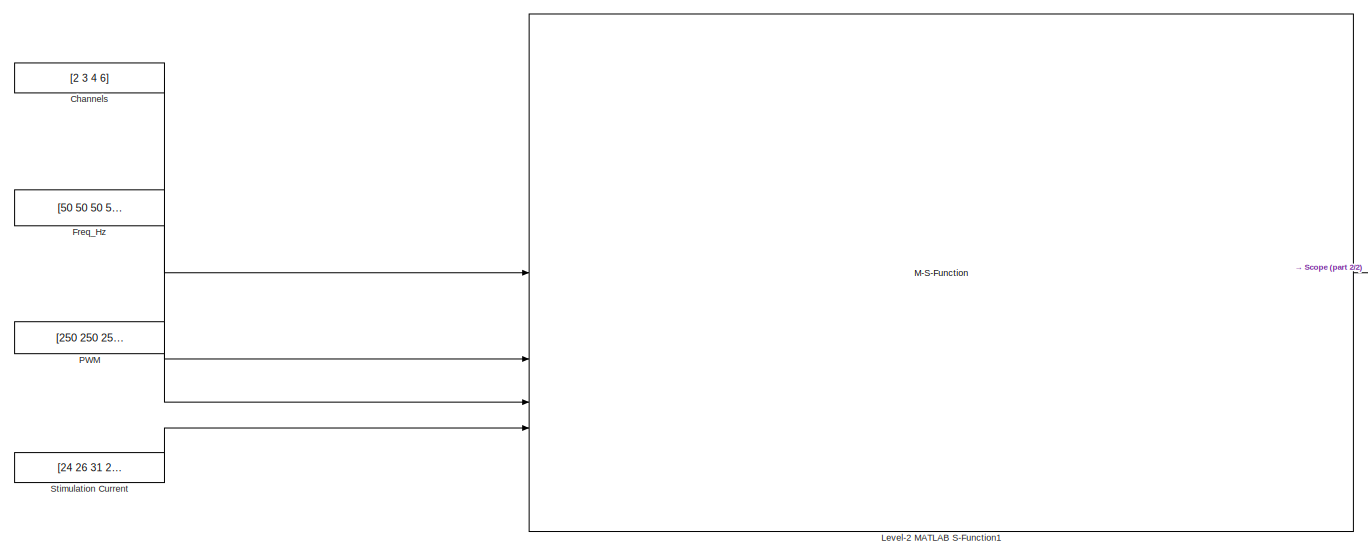
[diagram: root canvas - part 1/2, most of the canvas]
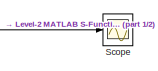
[diagram: root canvas - part 2/2, middle right region]
MODEL slx_c6a7e6b945d6
KIND model
CONFIG AbsTol = auto
CONFIG EnableMultiTasking = off
CONFIG FixedStep = auto
CONFIG MaxStep = auto
CONFIG MinStep = auto
CONFIG RelTol = 1e-3
CONFIG SampleTimeConstraint = Unconstrained
CONFIG SolverName = FixedStepAuto
CONFIG StartTime = 0.0
CONFIG StopTime = inf
BLOCK [Constant] Channels
  Value = [2  3  4  6]
BLOCK [Constant] Freq_Hz
  Value = [50 50 50 50]
BLOCK [M-S-Function] Level-2 MATLAB S-Function1
  FunctionName = P24Science
BLOCK [Constant] PWM
  Value = [250 250 250 250]
BLOCK [Scope] Scope
  Floating = off
  NumInputPorts = 1
  ScopeSpecificationString = Simulink.scopes.TimeScopeBlockCfg('CurrentConfiguration', extmgr.ConfigurationSet(extmgr.Configuration('Core','General UI',true),extmgr.Configuration('Core','Source UI',true),extmgr.Configuration('Sources','WiredSimulink',true,'DataLoggingVariableName','ScopeData1'),extmgr.Configuration('Visuals','Time Domain',true,'SerializedDisplays',{struct('MinYLimReal','-10','MaxYLimReal','10','YLabelReal',''...<+849ch>
BLOCK [Constant] Stimulation Current
  Value = [24 26 31 28]
LINE Channels:1 -> Level-2 MATLAB S-Function1:1
LINE Freq_Hz:1 -> Level-2 MATLAB S-Function1:2
LINE Level-2 MATLAB S-Function1:1 -> Scope:1
LINE PWM:1 -> Level-2 MATLAB S-Function1:3
LINE Stimulation Current:1 -> Level-2 MATLAB S-Function1:4
